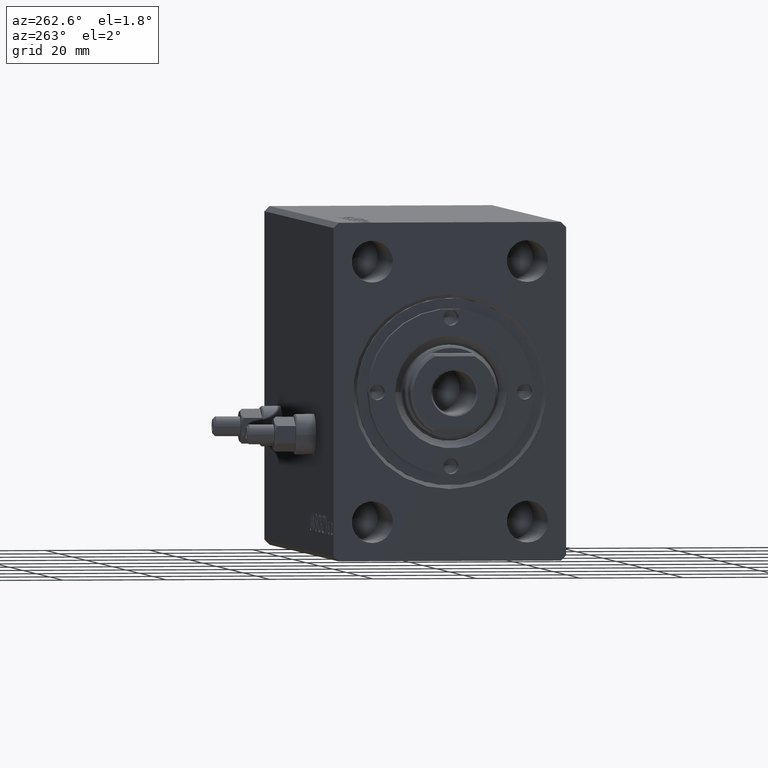
[diagram: clean part render]
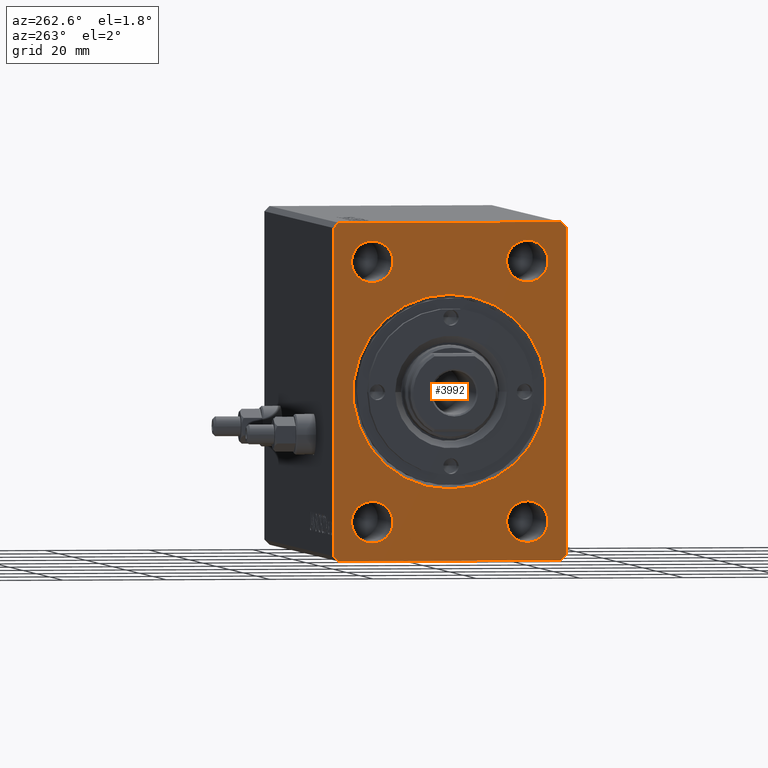
[diagram: same view with one face highlighted and labeled with its STEP entity id]
A machine part, auxiliary view. The second image highlights one B-rep face of the part: STEP entity #3992.
In plain terms, the highlighted planar face has unit normal (1, 0, 0).
Its self-contained STEP definition (entity closure, byte-faithful):
#248 = DIRECTION ( 'NONE',  ( 0.000000000000000000, 0.000000000000000000, 1.000000000000000000 ) ) ;
#258 = CARTESIAN_POINT ( 'NONE',  ( 3.061616997868395467E-16, -14.99999999999999645, 20.99999999999999645 ) ) ;
#316 = CARTESIAN_POINT ( 'NONE',  ( 0.000000000000000000, 22.49999999999999645, 31.50000000000000000 ) ) ;
#569 = CIRCLE ( 'NONE', #3483, 4.000000000000000000 ) ;
#1019 = CARTESIAN_POINT ( 'NONE',  ( 0.000000000000000000, 22.49999999999999645, 31.50000000000000000 ) ) ;
#1771 = ORIENTED_EDGE ( 'NONE', *, *, #19587, .F. ) ;
#2031 = CARTESIAN_POINT ( 'NONE',  ( 0.000000000000000000, 0.000000000000000000, 0.000000000000000000 ) ) ;
#2105 = CARTESIAN_POINT ( 'NONE',  ( 0.000000000000000000, 0.000000000000000000, 18.70000000000000995 ) ) ;
#2253 = DIRECTION ( 'NONE',  ( 1.000000000000000000, 0.000000000000000000, 0.000000000000000000 ) ) ;
#2304 = DIRECTION ( 'NONE',  ( 0.000000000000000000, 0.000000000000000000, 1.000000000000000000 ) ) ;
#2422 = EDGE_CURVE ( 'NONE', #4059, #31091, #7918, .T. ) ;
#2795 = CARTESIAN_POINT ( 'NONE',  ( 0.000000000000000000, 2.290089514405551688E-15, -18.70000000000000995 ) ) ;
#3236 = CARTESIAN_POINT ( 'NONE',  ( 3.061616997868395467E-16, -14.99999999999999645, 24.99999999999999645 ) ) ;
#3483 = AXIS2_PLACEMENT_3D ( 'NONE', #19919, #44342, #2304 ) ;
#3992 = ADVANCED_FACE ( 'NONE', ( #8799, #37550, #27274, #12676, #9693, #16561 ), #44397, .F. ) ;
#4059 = VERTEX_POINT ( 'NONE', #37324 ) ;
#4123 = CARTESIAN_POINT ( 'NONE',  ( 0.000000000000000000, 22.49999999999999645, -31.50000000000000000 ) ) ;
#5175 = CARTESIAN_POINT ( 'NONE',  ( 3.061616997868395467E-16, 15.00000000000000355, 21.00000000000000000 ) ) ;
#5464 = VERTEX_POINT ( 'NONE', #22336 ) ;
#5990 = CIRCLE ( 'NONE', #14745, 4.000000000000000000 ) ;
#6483 = CARTESIAN_POINT ( 'NONE',  ( 0.000000000000000000, 0.000000000000000000, 0.000000000000000000 ) ) ;
#7205 = VERTEX_POINT ( 'NONE', #21972 ) ;
#7241 = CIRCLE ( 'NONE', #8727, 4.000000000000000000 ) ;
#7301 = CIRCLE ( 'NONE', #32860, 4.000000000000000000 ) ;
#7515 = DIRECTION ( 'NONE',  ( 0.000000000000000000, 0.000000000000000000, 1.000000000000000000 ) ) ;
#7893 = CARTESIAN_POINT ( 'NONE',  ( 0.000000000000000000, -21.50000000000001776, -32.50000000000000711 ) ) ;
#7918 = LINE ( 'NONE', #22089, #19054 ) ;
#8133 = DIRECTION ( 'NONE',  ( -1.000000000000000000, -0.000000000000000000, -0.000000000000000000 ) ) ;
#8155 = CARTESIAN_POINT ( 'NONE',  ( 0.000000000000000000, 21.49999999999999645, 32.50000000000000000 ) ) ;
#8159 = DIRECTION ( 'NONE',  ( 0.000000000000000000, 0.7071067811865474617, 0.7071067811865474617 ) ) ;
#8165 = VERTEX_POINT ( 'NONE', #19672 ) ;
#8315 = VECTOR ( 'NONE', #24997, 1000.000000000000114 ) ;
#8440 = EDGE_CURVE ( 'NONE', #7205, #16529, #12643, .T. ) ;
#8727 = AXIS2_PLACEMENT_3D ( 'NONE', #3236, #31563, #248 ) ;
#8799 = FACE_BOUND ( 'NONE', #21297, .T. ) ;
#8930 = CARTESIAN_POINT ( 'NONE',  ( 3.061616997868395467E-16, -14.99999999999999645, -28.99999999999999645 ) ) ;
#9066 = DIRECTION ( 'NONE',  ( 0.000000000000000000, 0.000000000000000000, -1.000000000000000000 ) ) ;
#9693 = FACE_BOUND ( 'NONE', #22623, .T. ) ;
#10079 = ORIENTED_EDGE ( 'NONE', *, *, #15657, .F. ) ;
#10726 = DIRECTION ( 'NONE',  ( -1.000000000000000000, -0.000000000000000000, -0.000000000000000000 ) ) ;
#10811 = ORIENTED_EDGE ( 'NONE', *, *, #32354, .F. ) ;
#11562 = VERTEX_POINT ( 'NONE', #7893 ) ;
#11686 = EDGE_CURVE ( 'NONE', #31065, #25769, #32806, .T. ) ;
#12643 = CIRCLE ( 'NONE', #43254, 4.000000000000000000 ) ;
#12676 = FACE_BOUND ( 'NONE', #40235, .T. ) ;
#12785 = EDGE_CURVE ( 'NONE', #8165, #27519, #15022, .T. ) ;
#13093 = AXIS2_PLACEMENT_3D ( 'NONE', #29214, #10726, #7515 ) ;
#13240 = CARTESIAN_POINT ( 'NONE',  ( 3.061616997868395467E-16, -14.99999999999999645, 24.99999999999999645 ) ) ;
#13472 = DIRECTION ( 'NONE',  ( 0.000000000000000000, 0.000000000000000000, 1.000000000000000000 ) ) ;
#13559 = VECTOR ( 'NONE', #35643, 1000.000000000000000 ) ;
#13954 = AXIS2_PLACEMENT_3D ( 'NONE', #6483, #33456, #20422 ) ;
#14177 = DIRECTION ( 'NONE',  ( 0.000000000000000000, -0.7071067811865474617, -0.7071067811865474617 ) ) ;
#14427 = EDGE_CURVE ( 'NONE', #39512, #20135, #39300, .T. ) ;
#14537 = AXIS2_PLACEMENT_3D ( 'NONE', #26426, #27097, #9066 ) ;
#14739 = LINE ( 'NONE', #316, #8315 ) ;
#14745 = AXIS2_PLACEMENT_3D ( 'NONE', #35366, #25543, #21660 ) ;
#14850 = LINE ( 'NONE', #22141, #23017 ) ;
#15022 = LINE ( 'NONE', #8155, #30629 ) ;
#15295 = DIRECTION ( 'NONE',  ( -1.000000000000000000, -0.000000000000000000, -0.000000000000000000 ) ) ;
#15657 = EDGE_CURVE ( 'NONE', #16529, #7205, #7241, .T. ) ;
#16150 = EDGE_CURVE ( 'NONE', #42484, #27729, #41503, .T. ) ;
#16219 = DIRECTION ( 'NONE',  ( -1.000000000000000000, -0.000000000000000000, -0.000000000000000000 ) ) ;
#16529 = VERTEX_POINT ( 'NONE', #258 ) ;
#16561 = FACE_OUTER_BOUND ( 'NONE', #42808, .T. ) ;
#16909 = CARTESIAN_POINT ( 'NONE',  ( 3.061616997868395467E-16, -14.99999999999999645, -20.99999999999999645 ) ) ;
#17138 = ORIENTED_EDGE ( 'NONE', *, *, #34035, .F. ) ;
#17810 = EDGE_CURVE ( 'NONE', #25769, #31065, #7301, .T. ) ;
#18258 = VERTEX_POINT ( 'NONE', #27990 ) ;
#18722 = EDGE_CURVE ( 'NONE', #20135, #39512, #24208, .T. ) ;
#19054 = VECTOR ( 'NONE', #8159, 1000.000000000000114 ) ;
#19229 = CARTESIAN_POINT ( 'NONE',  ( 0.000000000000000000, 22.49999999999999645, -31.50000000000000000 ) ) ;
#19357 = ORIENTED_EDGE ( 'NONE', *, *, #18722, .T. ) ;
#19587 = EDGE_CURVE ( 'NONE', #5464, #35195, #5990, .T. ) ;
#19672 = CARTESIAN_POINT ( 'NONE',  ( 0.000000000000000000, 21.49999999999999645, 32.50000000000000000 ) ) ;
#19919 = CARTESIAN_POINT ( 'NONE',  ( 3.061616997868395467E-16, -14.99999999999999645, -24.99999999999999645 ) ) ;
#20135 = VERTEX_POINT ( 'NONE', #2795 ) ;
#20422 = DIRECTION ( 'NONE',  ( 0.000000000000000000, 0.000000000000000000, -1.000000000000000000 ) ) ;
#21190 = LINE ( 'NONE', #42179, #25337 ) ;
#21297 = EDGE_LOOP ( 'NONE', ( #1771, #17138 ) ) ;
#21660 = DIRECTION ( 'NONE',  ( 0.000000000000000000, 0.000000000000000000, 1.000000000000000000 ) ) ;
#21972 = CARTESIAN_POINT ( 'NONE',  ( 3.061616997868395467E-16, -14.99999999999999645, 28.99999999999999645 ) ) ;
#22005 = ORIENTED_EDGE ( 'NONE', *, *, #42181, .F. ) ;
#22086 = DIRECTION ( 'NONE',  ( 0.000000000000000000, -1.000000000000000000, 0.000000000000000000 ) ) ;
#22089 = CARTESIAN_POINT ( 'NONE',  ( 0.000000000000000000, 21.49999999999999645, -32.50000000000000000 ) ) ;
#22141 = CARTESIAN_POINT ( 'NONE',  ( 0.000000000000000000, -22.50000000000001421, -31.50000000000000711 ) ) ;
#22336 = CARTESIAN_POINT ( 'NONE',  ( 3.061616997868395467E-16, 15.00000000000000355, 29.00000000000000000 ) ) ;
#22623 = EDGE_LOOP ( 'NONE', ( #24386, #19357 ) ) ;
#22817 = DIRECTION ( 'NONE',  ( 0.000000000000000000, 0.7071067811865451302, -0.7071067811865500152 ) ) ;
#23017 = VECTOR ( 'NONE', #22817, 1000.000000000000114 ) ;
#23076 = CIRCLE ( 'NONE', #36937, 4.000000000000000000 ) ;
#23751 = CARTESIAN_POINT ( 'NONE',  ( 3.061616997868395467E-16, 15.00000000000000355, -28.99999999999999289 ) ) ;
#24208 = CIRCLE ( 'NONE', #41710, 18.70000000000000995 ) ;
#24270 = VECTOR ( 'NONE', #36519, 1000.000000000000000 ) ;
#24386 = ORIENTED_EDGE ( 'NONE', *, *, #14427, .T. ) ;
#24435 = CARTESIAN_POINT ( 'NONE',  ( 0.000000000000000000, -21.50000000000001421, 32.50000000000000000 ) ) ;
#24460 = ORIENTED_EDGE ( 'NONE', *, *, #17810, .F. ) ;
#24997 = DIRECTION ( 'NONE',  ( 0.000000000000000000, -0.7071067811865474617, 0.7071067811865474617 ) ) ;
#25337 = VECTOR ( 'NONE', #35120, 1000.000000000000000 ) ;
#25370 = LINE ( 'NONE', #4123, #13559 ) ;
#25543 = DIRECTION ( 'NONE',  ( -1.000000000000000000, -0.000000000000000000, -0.000000000000000000 ) ) ;
#25769 = VERTEX_POINT ( 'NONE', #23751 ) ;
#25947 = EDGE_CURVE ( 'NONE', #28657, #18258, #36294, .T. ) ;
#26426 = CARTESIAN_POINT ( 'NONE',  ( 0.000000000000000000, 0.000000000000000000, 0.000000000000000000 ) ) ;
#26864 = ORIENTED_EDGE ( 'NONE', *, *, #33147, .F. ) ;
#27097 = DIRECTION ( 'NONE',  ( 1.000000000000000000, 0.000000000000000000, 0.000000000000000000 ) ) ;
#27274 = FACE_BOUND ( 'NONE', #28524, .T. ) ;
#27519 = VERTEX_POINT ( 'NONE', #42270 ) ;
#27729 = VERTEX_POINT ( 'NONE', #8930 ) ;
#27920 = ORIENTED_EDGE ( 'NONE', *, *, #2422, .F. ) ;
#27990 = CARTESIAN_POINT ( 'NONE',  ( 0.000000000000000000, -22.50000000000001421, -31.50000000000000711 ) ) ;
#28080 = EDGE_CURVE ( 'NONE', #44698, #8165, #14739, .T. ) ;
#28510 = DIRECTION ( 'NONE',  ( 0.000000000000000000, 0.000000000000000000, 1.000000000000000000 ) ) ;
#28524 = EDGE_LOOP ( 'NONE', ( #44968, #24460 ) ) ;
#28657 = VERTEX_POINT ( 'NONE', #41129 ) ;
#29205 = CARTESIAN_POINT ( 'NONE',  ( 0.000000000000000000, -22.50000000000001776, 31.50000000000000000 ) ) ;
#29214 = CARTESIAN_POINT ( 'NONE',  ( 3.061616997868395467E-16, -14.99999999999999645, -24.99999999999999645 ) ) ;
#29465 = CARTESIAN_POINT ( 'NONE',  ( 3.061616997868395467E-16, 15.00000000000000355, -24.99999999999999289 ) ) ;
#30629 = VECTOR ( 'NONE', #22086, 1000.000000000000000 ) ;
#31065 = VERTEX_POINT ( 'NONE', #39996 ) ;
#31091 = VERTEX_POINT ( 'NONE', #19229 ) ;
#31563 = DIRECTION ( 'NONE',  ( -1.000000000000000000, -0.000000000000000000, -0.000000000000000000 ) ) ;
#31740 = LINE ( 'NONE', #24435, #41262 ) ;
#32354 = EDGE_CURVE ( 'NONE', #18258, #11562, #14850, .T. ) ;
#32559 = ORIENTED_EDGE ( 'NONE', *, *, #16150, .F. ) ;
#32806 = CIRCLE ( 'NONE', #33606, 4.000000000000000000 ) ;
#32860 = AXIS2_PLACEMENT_3D ( 'NONE', #29465, #43833, #43389 ) ;
#33147 = EDGE_CURVE ( 'NONE', #27519, #28657, #31740, .T. ) ;
#33456 = DIRECTION ( 'NONE',  ( 1.000000000000000000, 0.000000000000000000, 0.000000000000000000 ) ) ;
#33606 = AXIS2_PLACEMENT_3D ( 'NONE', #39656, #8133, #39882 ) ;
#33764 = ORIENTED_EDGE ( 'NONE', *, *, #12785, .F. ) ;
#34035 = EDGE_CURVE ( 'NONE', #35195, #5464, #23076, .T. ) ;
#34922 = ORIENTED_EDGE ( 'NONE', *, *, #28080, .F. ) ;
#35120 = DIRECTION ( 'NONE',  ( 0.000000000000000000, 1.000000000000000000, 1.613696256722610912E-16 ) ) ;
#35195 = VERTEX_POINT ( 'NONE', #5175 ) ;
#35366 = CARTESIAN_POINT ( 'NONE',  ( 3.061616997868395467E-16, 15.00000000000000355, 25.00000000000000000 ) ) ;
#35643 = DIRECTION ( 'NONE',  ( 0.000000000000000000, 0.000000000000000000, 1.000000000000000000 ) ) ;
#36228 = EDGE_LOOP ( 'NONE', ( #32559, #22005 ) ) ;
#36291 = CARTESIAN_POINT ( 'NONE',  ( 3.061616997868395467E-16, 15.00000000000000355, 25.00000000000000000 ) ) ;
#36294 = LINE ( 'NONE', #29205, #24270 ) ;
#36519 = DIRECTION ( 'NONE',  ( 0.000000000000000000, 5.507058653894625853E-17, -1.000000000000000000 ) ) ;
#36937 = AXIS2_PLACEMENT_3D ( 'NONE', #36291, #15295, #28510 ) ;
#37324 = CARTESIAN_POINT ( 'NONE',  ( 0.000000000000000000, 21.49999999999999645, -32.50000000000000000 ) ) ;
#37468 = EDGE_CURVE ( 'NONE', #31091, #44698, #25370, .T. ) ;
#37550 = FACE_BOUND ( 'NONE', #36228, .T. ) ;
#38171 = ORIENTED_EDGE ( 'NONE', *, *, #37468, .F. ) ;
#39300 = CIRCLE ( 'NONE', #14537, 18.70000000000000995 ) ;
#39512 = VERTEX_POINT ( 'NONE', #2105 ) ;
#39656 = CARTESIAN_POINT ( 'NONE',  ( 3.061616997868395467E-16, 15.00000000000000355, -24.99999999999999289 ) ) ;
#39882 = DIRECTION ( 'NONE',  ( 0.000000000000000000, 0.000000000000000000, 1.000000000000000000 ) ) ;
#39996 = CARTESIAN_POINT ( 'NONE',  ( 3.061616997868395467E-16, 15.00000000000000355, -20.99999999999999289 ) ) ;
#40235 = EDGE_LOOP ( 'NONE', ( #44073, #10079 ) ) ;
#40405 = EDGE_CURVE ( 'NONE', #11562, #4059, #21190, .T. ) ;
#41129 = CARTESIAN_POINT ( 'NONE',  ( 0.000000000000000000, -22.50000000000001776, 31.50000000000000000 ) ) ;
#41262 = VECTOR ( 'NONE', #14177, 1000.000000000000114 ) ;
#41503 = CIRCLE ( 'NONE', #13093, 4.000000000000000000 ) ;
#41710 = AXIS2_PLACEMENT_3D ( 'NONE', #2031, #2253, #43619 ) ;
#42153 = ORIENTED_EDGE ( 'NONE', *, *, #40405, .F. ) ;
#42179 = CARTESIAN_POINT ( 'NONE',  ( 0.000000000000000000, -21.50000000000001776, -32.50000000000000711 ) ) ;
#42181 = EDGE_CURVE ( 'NONE', #27729, #42484, #569, .T. ) ;
#42270 = CARTESIAN_POINT ( 'NONE',  ( 0.000000000000000000, -21.50000000000001421, 32.50000000000000000 ) ) ;
#42484 = VERTEX_POINT ( 'NONE', #16909 ) ;
#42808 = EDGE_LOOP ( 'NONE', ( #34922, #38171, #27920, #42153, #10811, #43863, #26864, #33764 ) ) ;
#43254 = AXIS2_PLACEMENT_3D ( 'NONE', #13240, #16219, #13472 ) ;
#43389 = DIRECTION ( 'NONE',  ( 0.000000000000000000, 0.000000000000000000, 1.000000000000000000 ) ) ;
#43619 = DIRECTION ( 'NONE',  ( 0.000000000000000000, 0.000000000000000000, -1.000000000000000000 ) ) ;
#43833 = DIRECTION ( 'NONE',  ( -1.000000000000000000, -0.000000000000000000, -0.000000000000000000 ) ) ;
#43863 = ORIENTED_EDGE ( 'NONE', *, *, #25947, .F. ) ;
#44073 = ORIENTED_EDGE ( 'NONE', *, *, #8440, .F. ) ;
#44342 = DIRECTION ( 'NONE',  ( -1.000000000000000000, -0.000000000000000000, -0.000000000000000000 ) ) ;
#44397 = PLANE ( 'NONE',  #13954 ) ;
#44698 = VERTEX_POINT ( 'NONE', #1019 ) ;
#44968 = ORIENTED_EDGE ( 'NONE', *, *, #11686, .F. ) ;